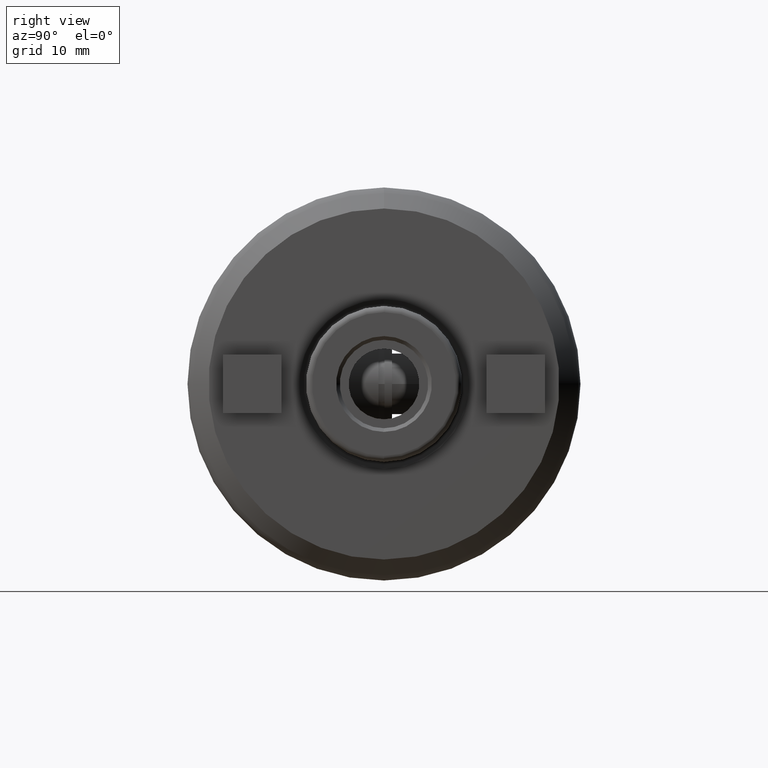
[diagram: clean part render]
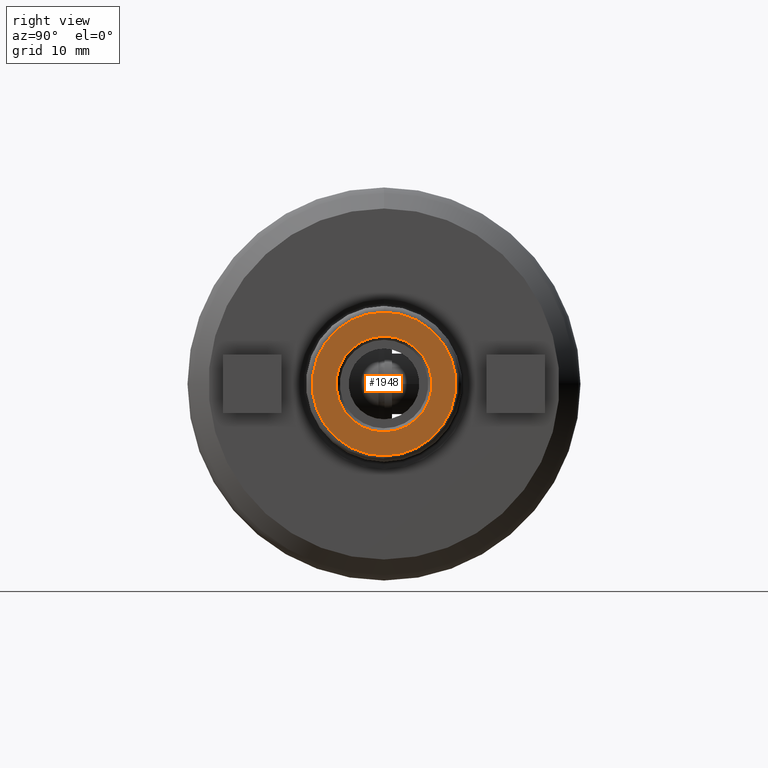
[diagram: same view with one face highlighted and labeled with its STEP entity id]
A machine part, right view. The second image highlights one B-rep face of the part: STEP entity #1948.
In plain terms, the highlighted planar face has unit normal (1, 0, 0).
Its self-contained STEP definition (entity closure, byte-faithful):
#109 = AXIS2_PLACEMENT_3D ( 'NONE', #3917, #3918, #3919 ) ;
#139 = CIRCLE ( 'NONE', #174, 11.69750000000000000 ) ;
#174 = AXIS2_PLACEMENT_3D ( 'NONE', #3873, #3874, #3875 ) ;
#249 = CIRCLE ( 'NONE', #252, 7.800000020999999800 ) ;
#250 = CIRCLE ( 'NONE', #109, 11.69750000000000000 ) ;
#252 = AXIS2_PLACEMENT_3D ( 'NONE', #3878, #3879, #3880 ) ;
#375 = CARTESIAN_POINT ( 'NONE',  ( 77.41000000000002500, 1.493762933259984200E-015, 11.69750000000000000 ) ) ;
#1122 = AXIS2_PLACEMENT_3D ( 'NONE', #2977, #2984, #2985 ) ;
#1492 = VERTEX_POINT ( 'NONE', #1668 ) ;
#1499 = VERTEX_POINT ( 'NONE', #1670 ) ;
#1610 = VERTEX_POINT ( 'NONE', #1905 ) ;
#1622 = VERTEX_POINT ( 'NONE', #375 ) ;
#1668 = CARTESIAN_POINT ( 'NONE',  ( 77.41000000000002500, 9.552245059066937900E-016, 7.800000020999999800 ) ) ;
#1670 = CARTESIAN_POINT ( 'NONE',  ( 77.41000000000002500, 0.0000000000000000000, -7.800000020999999800 ) ) ;
#1776 = EDGE_LOOP ( 'NONE', ( #1861, #1869 ) ) ;
#1779 = ORIENTED_EDGE ( 'NONE', *, *, #2128, .T. ) ;
#1838 = EDGE_LOOP ( 'NONE', ( #1779, #1857 ) ) ;
#1857 = ORIENTED_EDGE ( 'NONE', *, *, #2114, .T. ) ;
#1861 = ORIENTED_EDGE ( 'NONE', *, *, #2115, .F. ) ;
#1869 = ORIENTED_EDGE ( 'NONE', *, *, #2561, .F. ) ;
#1905 = CARTESIAN_POINT ( 'NONE',  ( 77.41000000000002500, 0.0000000000000000000, -11.69750000000000000 ) ) ;
#1948 = ADVANCED_FACE ( 'NONE', ( #2980, #2981 ), #2982, .T. ) ;
#2114 = EDGE_CURVE ( 'NONE', #1622, #1610, #139, .T. ) ;
#2115 = EDGE_CURVE ( 'NONE', #1499, #1492, #249, .T. ) ;
#2128 = EDGE_CURVE ( 'NONE', #1610, #1622, #250, .T. ) ;
#2561 = EDGE_CURVE ( 'NONE', #1492, #1499, #3507, .T. ) ;
#2977 = CARTESIAN_POINT ( 'NONE',  ( 77.41000000000002500, 0.0000000000000000000, 0.0000000000000000000 ) ) ;
#2980 = FACE_BOUND ( 'NONE', #1776, .T. ) ;
#2981 = FACE_OUTER_BOUND ( 'NONE', #1838, .T. ) ;
#2982 = PLANE ( 'NONE',  #1122 ) ;
#2984 = DIRECTION ( 'NONE',  ( 1.000000000000000000, 0.0000000000000000000, 0.0000000000000000000 ) ) ;
#2985 = DIRECTION ( 'NONE',  ( 0.0000000000000000000, 0.0000000000000000000, -1.000000000000000000 ) ) ;
#3482 = AXIS2_PLACEMENT_3D ( 'NONE', #4085, #4086, #4087 ) ;
#3507 = CIRCLE ( 'NONE', #3482, 7.800000020999999800 ) ;
#3873 = CARTESIAN_POINT ( 'NONE',  ( 77.41000000000002500, 0.0000000000000000000, 0.0000000000000000000 ) ) ;
#3874 = DIRECTION ( 'NONE',  ( 1.000000000000000000, 0.0000000000000000000, 0.0000000000000000000 ) ) ;
#3875 = DIRECTION ( 'NONE',  ( 0.0000000000000000000, 0.0000000000000000000, -1.000000000000000000 ) ) ;
#3878 = CARTESIAN_POINT ( 'NONE',  ( 77.41000000000002500, 0.0000000000000000000, 0.0000000000000000000 ) ) ;
#3879 = DIRECTION ( 'NONE',  ( 1.000000000000000000, -0.0000000000000000000, -0.0000000000000000000 ) ) ;
#3880 = DIRECTION ( 'NONE',  ( 0.0000000000000000000, 0.0000000000000000000, -1.000000000000000000 ) ) ;
#3917 = CARTESIAN_POINT ( 'NONE',  ( 77.41000000000002500, 0.0000000000000000000, 0.0000000000000000000 ) ) ;
#3918 = DIRECTION ( 'NONE',  ( 1.000000000000000000, 0.0000000000000000000, 0.0000000000000000000 ) ) ;
#3919 = DIRECTION ( 'NONE',  ( 0.0000000000000000000, 0.0000000000000000000, -1.000000000000000000 ) ) ;
#4085 = CARTESIAN_POINT ( 'NONE',  ( 77.41000000000002500, 0.0000000000000000000, 0.0000000000000000000 ) ) ;
#4086 = DIRECTION ( 'NONE',  ( 1.000000000000000000, -0.0000000000000000000, -0.0000000000000000000 ) ) ;
#4087 = DIRECTION ( 'NONE',  ( 0.0000000000000000000, 0.0000000000000000000, -1.000000000000000000 ) ) ;